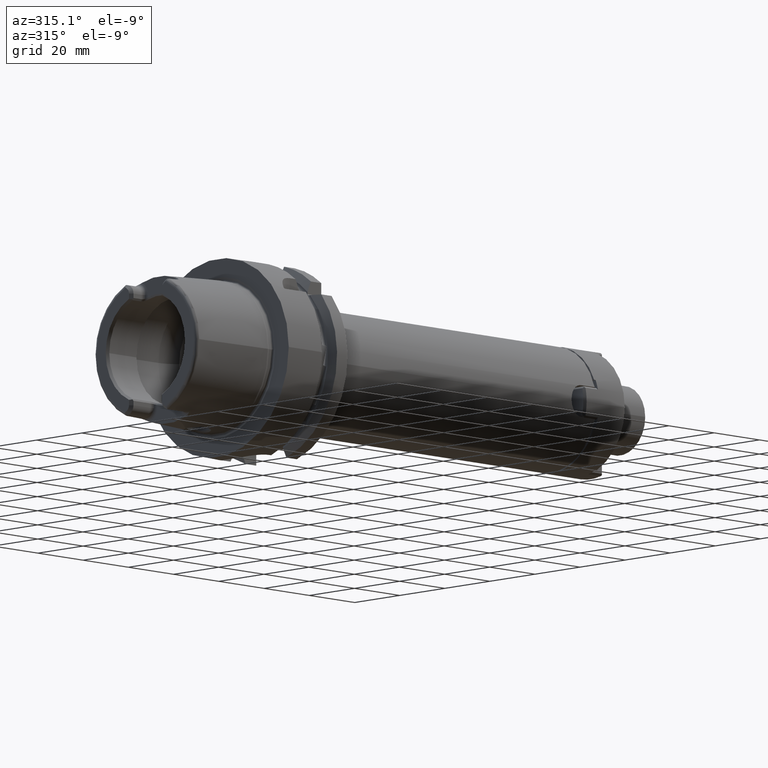
[diagram: clean part render]
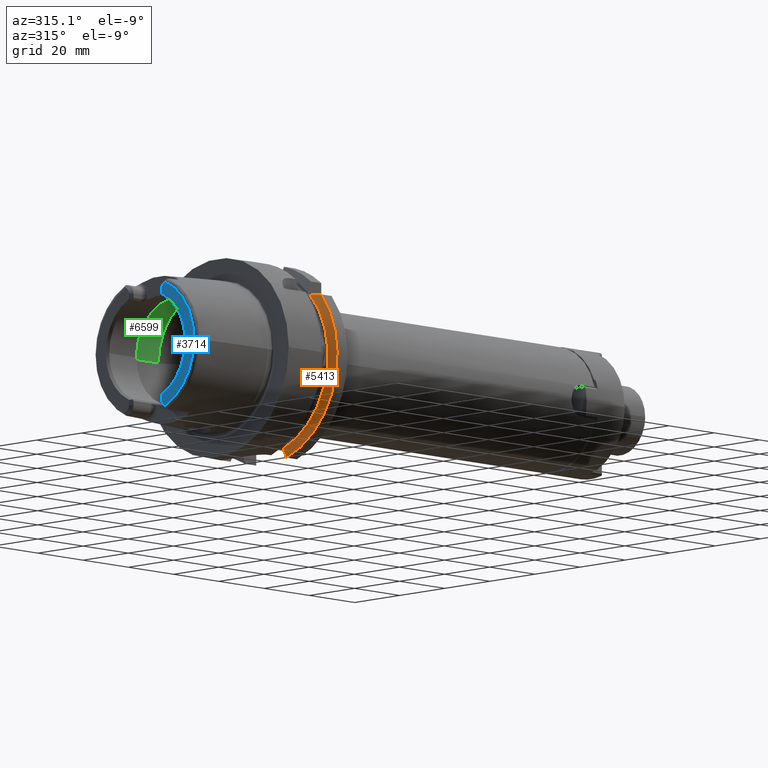
[diagram: same view with three faces highlighted in distinct colors, each labeled with its STEP entity id]
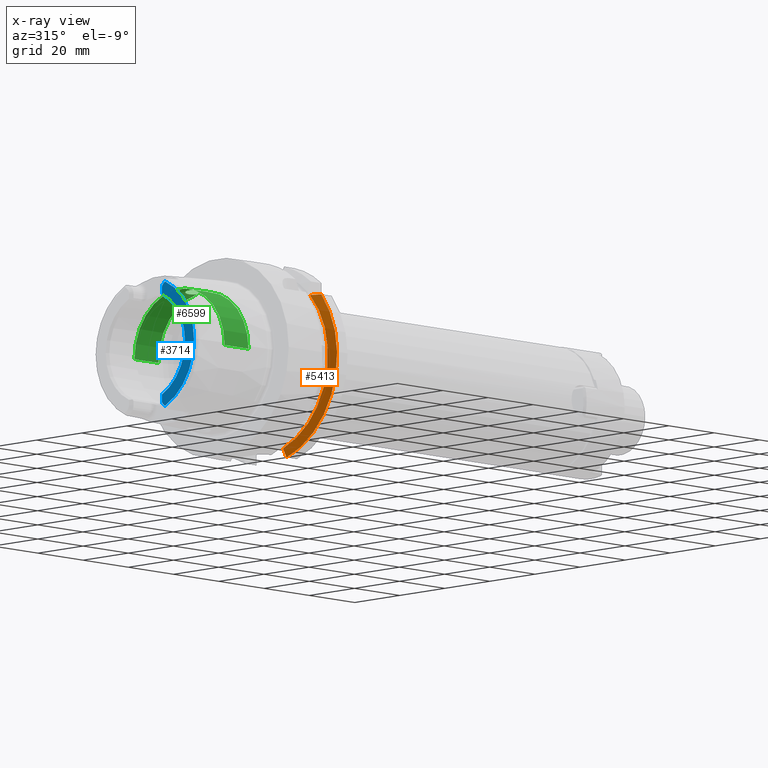
[diagram: x-ray of the same camera — body ghosted, the three highlighted faces saturated]
A machine part, auxiliary view with three faces highlighted in distinct colors.
The next image is the same camera in x-ray (body ghosted, the three faces saturated) — at least one of them is partly hidden behind the body in this view.
Their STEP definitions:

[orange] entity #5413 — the highlighted conical surface has half-angle 60 deg.
#1797=CARTESIAN_POINT('',(1.9875E1,-2.100115501712E1,1.985E1));
#1798=CARTESIAN_POINT('',(2.002615778083E1,-2.136140971936E1,1.985E1));
#1799=CARTESIAN_POINT('',(2.033884699379E1,-2.209786160622E1,1.985E1));
#1800=CARTESIAN_POINT('',(2.083744118214E1,-2.324577082409E1,1.985E1));
#1801=CARTESIAN_POINT('',(2.119367380645E1,-2.404863363206E1,1.985E1));
#1802=CARTESIAN_POINT('',(2.137749907476E1,-2.445868966237E1,1.985E1));
#1804=CARTESIAN_POINT('',(2.137749907476E1,0.E0,0.E0));
#1805=DIRECTION('',(1.E0,0.E0,0.E0));
#1806=DIRECTION('',(0.E0,-7.764663384879E-1,6.301587301587E-1));
#1807=AXIS2_PLACEMENT_3D('',#1804,#1805,#1806);
#1809=CARTESIAN_POINT('',(1.9875E1,-9.0175E0,-2.745461174016E1));
#1810=CARTESIAN_POINT('',(2.003399901875E1,-9.0175E0,-2.774448053791E1));
#1811=CARTESIAN_POINT('',(2.035729051151E1,-9.0175E0,-2.833297398512E1));
#1812=CARTESIAN_POINT('',(2.085789481016E1,-9.0175E0,-2.924158789478E1));
#1813=CARTESIAN_POINT('',(2.120250873981E1,-9.0175E0,-2.986536377611E1));
#1814=CARTESIAN_POINT('',(2.137749907476E1,-9.0175E0,-3.018169467989E1));
#1816=CARTESIAN_POINT('',(1.9875E1,0.E0,0.E0));
#1817=DIRECTION('',(-1.E0,0.E0,0.E0));
#1818=DIRECTION('',(0.E0,-3.120501867909E-1,-9.500656192726E-1));
#1819=AXIS2_PLACEMENT_3D('',#1816,#1817,#1818);
#3353=CARTESIAN_POINT('',(1.9875E1,-9.0175E0,-2.745461174016E1));
#3355=VERTEX_POINT('',#3353);
#3358=VERTEX_POINT('',#1814);
#3365=CARTESIAN_POINT('',(2.137749907476E1,-2.445868966237E1,1.985E1));
#3367=VERTEX_POINT('',#3365);
#3381=CARTESIAN_POINT('',(1.9875E1,-2.100115501712E1,1.985E1));
#3383=VERTEX_POINT('',#3381);
#5401=CARTESIAN_POINT('',(2.062624953738E1,0.E0,0.E0));
#5402=DIRECTION('',(1.E0,0.E0,0.E0));
#5403=DIRECTION('',(0.E0,-1.E0,0.E0));
#5404=AXIS2_PLACEMENT_3D('',#5401,#5402,#5403);
#5405=CONICAL_SURFACE('',#5404,3.019879763210E1,6.E1);
#5406=ORIENTED_EDGE('',*,*,#5282,.T.);
#5407=ORIENTED_EDGE('',*,*,#5195,.T.);
#5409=ORIENTED_EDGE('',*,*,#5408,.F.);
#5410=ORIENTED_EDGE('',*,*,#5368,.T.);
#5411=EDGE_LOOP('',(#5406,#5407,#5409,#5410));
#5412=FACE_OUTER_BOUND('',#5411,.F.);
#5413=ADVANCED_FACE('',(#5412),#5405,.T.);
#1803=B_SPLINE_CURVE_WITH_KNOTS('',3,(#1797,#1798,#1799,#1800,#1801,#1802),
.UNSPECIFIED.,.F.,.F.,(4,1,1,4),(0.E0,3.333333333333E-1,6.666666666667E-1,1.E0),
.UNSPECIFIED.);
#1808=CIRCLE('',#1807,3.15E1);
#1815=B_SPLINE_CURVE_WITH_KNOTS('',3,(#1809,#1810,#1811,#1812,#1813,#1814),
.UNSPECIFIED.,.F.,.F.,(4,1,1,4),(0.E0,3.333333333333E-1,6.666666666667E-1,1.E0),
.UNSPECIFIED.);
#1820=CIRCLE('',#1819,2.889759526419E1);
#5195=EDGE_CURVE('',#3367,#3358,#1808,.T.);
#5282=EDGE_CURVE('',#3383,#3367,#1803,.T.);
#5368=EDGE_CURVE('',#3355,#3383,#1820,.T.);
#5408=EDGE_CURVE('',#3355,#3358,#1815,.T.);

[blue] entity #3714 — the highlighted planar face has unit normal (1, 0, 0).
#231=CARTESIAN_POINT('',(-3.2E1,0.E0,0.E0));
#232=DIRECTION('',(-1.E0,0.E0,0.E0));
#233=DIRECTION('',(0.E0,-4.056746540583E-1,-9.140175463604E-1));
#234=AXIS2_PLACEMENT_3D('',#231,#232,#233);
#315=DIRECTION('',(0.E0,0.E0,-1.E0));
#316=VECTOR('',#315,1.666552168805E0);
#317=CARTESIAN_POINT('',(-3.2E1,-7.27E0,-1.600344783120E1));
#318=LINE('',#317,#316);
#319=DIRECTION('',(0.E0,0.E0,1.E0));
#320=VECTOR('',#319,1.666552168805E0);
#321=CARTESIAN_POINT('',(-3.2E1,-7.27E0,1.600344783120E1));
#322=LINE('',#321,#320);
#323=CARTESIAN_POINT('',(-3.2E1,-9.27E0,1.767E1));
#324=DIRECTION('',(1.E0,0.E0,0.E0));
#325=DIRECTION('',(0.E0,1.E0,1.065814103640E-14));
#326=AXIS2_PLACEMENT_3D('',#323,#324,#325);
#328=DIRECTION('',(0.E0,8.373245684230E-1,-5.467061067112E-1));
#329=VECTOR('',#328,6.882400885957E-1);
#330=CARTESIAN_POINT('',(-3.2E1,-8.752868121732E0,1.972091419616E1));
#331=LINE('',#330,#329);
#332=DIRECTION('',(0.E0,8.373245684230E-1,5.467061067112E-1));
#333=VECTOR('',#332,6.882400885957E-1);
#334=CARTESIAN_POINT('',(-3.2E1,-8.752868121732E0,-1.972091419616E1));
#335=LINE('',#334,#333);
#336=CARTESIAN_POINT('',(-3.2E1,-9.27E0,-1.767E1));
#337=DIRECTION('',(-1.E0,0.E0,0.E0));
#338=DIRECTION('',(0.E0,1.E0,0.E0));
#339=AXIS2_PLACEMENT_3D('',#336,#337,#338);
#410=CARTESIAN_POINT('',(-3.2E1,0.E0,0.E0));
#411=DIRECTION('',(1.E0,0.E0,0.E0));
#412=DIRECTION('',(0.E0,-4.136004510727E-1,9.104584926686E-1));
#413=AXIS2_PLACEMENT_3D('',#410,#411,#412);
#3057=CARTESIAN_POINT('',(-3.2E1,-7.27E0,1.600344783120E1));
#3058=CARTESIAN_POINT('',(-3.2E1,-7.27E0,1.767E1));
#3059=VERTEX_POINT('',#3057);
#3060=VERTEX_POINT('',#3058);
#3061=CARTESIAN_POINT('',(-3.2E1,-8.176587786578E0,1.934464913685E1));
#3062=VERTEX_POINT('',#3061);
#3063=CARTESIAN_POINT('',(-3.2E1,-8.752868121732E0,1.972091419616E1));
#3064=VERTEX_POINT('',#3063);
#3154=CARTESIAN_POINT('',(-3.2E1,-7.27E0,-1.600344783120E1));
#3155=CARTESIAN_POINT('',(-3.2E1,-7.27E0,-1.767E1));
#3156=VERTEX_POINT('',#3154);
#3157=VERTEX_POINT('',#3155);
#3158=CARTESIAN_POINT('',(-3.2E1,-8.176587786578E0,-1.934464913685E1));
#3159=VERTEX_POINT('',#3158);
#3160=CARTESIAN_POINT('',(-3.2E1,-8.752868121732E0,-1.972091419616E1));
#3161=VERTEX_POINT('',#3160);
#3692=CARTESIAN_POINT('',(-3.2E1,0.E0,0.E0));
#3693=DIRECTION('',(1.E0,0.E0,0.E0));
#3694=DIRECTION('',(0.E0,-1.E0,0.E0));
#3695=AXIS2_PLACEMENT_3D('',#3692,#3693,#3694);
#3696=PLANE('',#3695);
#3698=ORIENTED_EDGE('',*,*,#3697,.F.);
#3700=ORIENTED_EDGE('',*,*,#3699,.F.);
#3702=ORIENTED_EDGE('',*,*,#3701,.T.);
#3704=ORIENTED_EDGE('',*,*,#3703,.T.);
#3706=ORIENTED_EDGE('',*,*,#3705,.F.);
#3707=ORIENTED_EDGE('',*,*,#3639,.F.);
#3709=ORIENTED_EDGE('',*,*,#3708,.T.);
#3711=ORIENTED_EDGE('',*,*,#3710,.F.);
#3712=EDGE_LOOP('',(#3698,#3700,#3702,#3704,#3706,#3707,#3709,#3711));
#3713=FACE_OUTER_BOUND('',#3712,.F.);
#3714=ADVANCED_FACE('',(#3713),#3696,.F.);
#235=CIRCLE('',#234,2.157607835286E1);
#327=CIRCLE('',#326,2.E0);
#340=CIRCLE('',#339,2.E0);
#414=CIRCLE('',#413,1.757735026919E1);
#3639=EDGE_CURVE('',#3161,#3064,#235,.T.);
#3697=EDGE_CURVE('',#3156,#3157,#318,.T.);
#3699=EDGE_CURVE('',#3059,#3156,#414,.T.);
#3701=EDGE_CURVE('',#3059,#3060,#322,.T.);
#3703=EDGE_CURVE('',#3060,#3062,#327,.T.);
#3705=EDGE_CURVE('',#3064,#3062,#331,.T.);
#3708=EDGE_CURVE('',#3161,#3159,#335,.T.);
#3710=EDGE_CURVE('',#3157,#3159,#340,.T.);

[green] entity #6599 — the highlighted cylindrical surface (partial cylindrical patch) has radius 20 mm, axis along (1, 0, 0).
#2576=CARTESIAN_POINT('',(-6.344997998398E0,2.648294615690E0,1.982388800484E1));
#2578=CARTESIAN_POINT('',(-6.344997998398E0,-2.648294615690E0,
1.982388800484E1));
#2593=CARTESIAN_POINT('',(-6.344997998398E0,2.648294615690E0,1.982388800484E1));
#2594=CARTESIAN_POINT('',(-6.460596585787E0,2.764185981810E0,1.980840595204E1));
#2595=CARTESIAN_POINT('',(-6.705032526468E0,2.979236620594E0,1.977762997767E1));
#2596=CARTESIAN_POINT('',(-7.115707088008E0,3.254820950558E0,1.973390915713E1));
#2597=CARTESIAN_POINT('',(-7.558788067840E0,3.473550756710E0,1.969635481023E1));
#2598=CARTESIAN_POINT('',(-8.021221245910E0,3.630990626018E0,1.966777323779E1));
#2599=CARTESIAN_POINT('',(-8.506803393416E0,3.728808889512E0,1.964936004927E1));
#2600=CARTESIAN_POINT('',(-9.030555145845E0,3.763361449459E0,1.964272649975E1));
#2601=CARTESIAN_POINT('',(-9.606429583869E0,3.716513314942E0,1.965172145674E1));
#2602=CARTESIAN_POINT('',(-1.018737071400E1,3.573599882894E0,1.967844261791E1));
#2603=CARTESIAN_POINT('',(-1.073043578591E1,3.344031986540E0,1.971908086237E1));
#2604=CARTESIAN_POINT('',(-1.122924164708E1,3.034476069484E0,1.976949853857E1));
#2605=CARTESIAN_POINT('',(-1.167539523054E1,2.649612593318E0,1.982521182701E1));
#2606=CARTESIAN_POINT('',(-1.205589435788E1,2.199789113726E0,1.988058991308E1));
#2607=CARTESIAN_POINT('',(-1.236037157112E1,1.698335126266E0,1.993006117584E1));
#2608=CARTESIAN_POINT('',(-1.258308722480E1,1.156984185320E0,1.996912477874E1));
#2609=CARTESIAN_POINT('',(-1.271933931783E1,5.855799559107E-1,
1.999421727083E1));
#2610=CARTESIAN_POINT('',(-1.275E1,1.970790591689E-1,2.E1));
#2611=CARTESIAN_POINT('',(-1.275E1,0.E0,2.E1));
#2613=CARTESIAN_POINT('',(-6.344997998398E0,0.E0,0.E0));
#2614=DIRECTION('',(1.E0,0.E0,0.E0));
#2615=DIRECTION('',(0.E0,1.E0,0.E0));
#2616=AXIS2_PLACEMENT_3D('',#2613,#2614,#2615);
#2618=CARTESIAN_POINT('',(-6.344997998398E0,0.E0,0.E0));
#2619=DIRECTION('',(1.E0,0.E0,0.E0));
#2620=DIRECTION('',(0.E0,-1.324147307845E-1,9.911944002421E-1));
#2621=AXIS2_PLACEMENT_3D('',#2618,#2619,#2620);
#2623=CARTESIAN_POINT('',(-1.275E1,0.E0,2.E1));
#2624=CARTESIAN_POINT('',(-1.275E1,-1.955242925513E-1,2.E1));
#2625=CARTESIAN_POINT('',(-1.271982051521E1,-5.810761079055E-1,
1.999430841785E1));
#2626=CARTESIAN_POINT('',(-1.258557303883E1,-1.148512219472E0,
1.996957850985E1));
#2627=CARTESIAN_POINT('',(-1.236610647030E1,-1.686465533352E0,
1.993104432949E1));
#2628=CARTESIAN_POINT('',(-1.206568486343E1,-2.185767805005E0,
1.988212273505E1));
#2629=CARTESIAN_POINT('',(-1.169008850873E1,-2.634407568635E0,
1.982723415069E1));
#2630=CARTESIAN_POINT('',(-1.124927195009E1,-3.019358385751E0,
1.977181562270E1));
#2631=CARTESIAN_POINT('',(-1.075709032709E1,-3.329824405020E0,
1.972149412598E1));
#2632=CARTESIAN_POINT('',(-1.021949126442E1,-3.562609701439E0,
1.968045031109E1));
#2633=CARTESIAN_POINT('',(-9.641467361370E0,-3.710631949485E0,
1.965284251435E1));
#2634=CARTESIAN_POINT('',(-9.064366496245E0,-3.763073985501E0,
1.964278184632E1));
#2635=CARTESIAN_POINT('',(-8.536701772833E0,-3.732854425270E0,
1.964858745769E1));
#2636=CARTESIAN_POINT('',(-8.044881233754E0,-3.637565201588E0,
1.966655458906E1));
#2637=CARTESIAN_POINT('',(-7.575563176507E0,-3.480761658208E0,
1.969508217317E1));
#2638=CARTESIAN_POINT('',(-7.126022383363E0,-3.261082066667E0,
1.973288259674E1));
#2639=CARTESIAN_POINT('',(-6.709667549471E0,-2.983130387452E0,
1.977705858332E1));
#2640=CARTESIAN_POINT('',(-6.462043566692E0,-2.765636627510E0,
1.980821215871E1));
#2641=CARTESIAN_POINT('',(-6.344997998398E0,-2.648294615690E0,
1.982388800484E1));
#2688=DIRECTION('',(-1.E0,0.E0,0.E0));
#2689=VECTOR('',#2688,1.057256643630E1);
#2690=CARTESIAN_POINT('',(-6.344997998398E0,-2.E1,0.E0));
#2691=LINE('',#2690,#2689);
#2692=DIRECTION('',(-1.E0,0.E0,0.E0));
#2693=VECTOR('',#2692,1.057256643630E1);
#2694=CARTESIAN_POINT('',(-6.344997998398E0,2.E1,0.E0));
#2695=LINE('',#2694,#2693);
#2927=CARTESIAN_POINT('',(-1.691756443470E1,0.E0,0.E0));
#2928=DIRECTION('',(1.E0,0.E0,0.E0));
#2929=DIRECTION('',(0.E0,1.E0,0.E0));
#2930=AXIS2_PLACEMENT_3D('',#2927,#2928,#2929);
#2992=CARTESIAN_POINT('',(-6.344997998398E0,2.E1,0.E0));
#2993=VERTEX_POINT('',#2992);
#2994=CARTESIAN_POINT('',(-1.691756443470E1,2.E1,0.E0));
#2995=VERTEX_POINT('',#2994);
#3004=CARTESIAN_POINT('',(-6.344997998398E0,-2.E1,0.E0));
#3005=VERTEX_POINT('',#3004);
#3006=CARTESIAN_POINT('',(-1.691756443470E1,-2.E1,0.E0));
#3007=VERTEX_POINT('',#3006);
#3174=VERTEX_POINT('',#2576);
#3175=VERTEX_POINT('',#2578);
#3176=VERTEX_POINT('',#2611);
#6582=CARTESIAN_POINT('',(-3.41E1,0.E0,0.E0));
#6583=DIRECTION('',(1.E0,0.E0,0.E0));
#6584=DIRECTION('',(0.E0,-1.E0,0.E0));
#6585=AXIS2_PLACEMENT_3D('',#6582,#6583,#6584);
#6586=CYLINDRICAL_SURFACE('',#6585,2.E1);
#6587=ORIENTED_EDGE('',*,*,#6541,.F.);
#6588=ORIENTED_EDGE('',*,*,#6577,.F.);
#6590=ORIENTED_EDGE('',*,*,#6589,.T.);
#6592=ORIENTED_EDGE('',*,*,#6591,.T.);
#6594=ORIENTED_EDGE('',*,*,#6593,.F.);
#6595=ORIENTED_EDGE('',*,*,#6569,.F.);
#6596=ORIENTED_EDGE('',*,*,#6303,.F.);
#6597=EDGE_LOOP('',(#6587,#6588,#6590,#6592,#6594,#6595,#6596));
#6598=FACE_OUTER_BOUND('',#6597,.F.);
#6599=ADVANCED_FACE('',(#6598),#6586,.F.);
#2612=B_SPLINE_CURVE_WITH_KNOTS('',3,(#2593,#2594,#2595,#2596,#2597,#2598,#2599,
#2600,#2601,#2602,#2603,#2604,#2605,#2606,#2607,#2608,#2609,#2610,#2611),
.UNSPECIFIED.,.F.,.F.,(4,1,1,1,1,1,1,1,1,1,1,1,1,1,1,1,4),(0.E0,6.25E-2,1.25E-1,
1.875E-1,2.5E-1,3.125E-1,3.75E-1,4.375E-1,5.E-1,5.625E-1,6.25E-1,6.875E-1,
7.5E-1,8.125E-1,8.75E-1,9.375E-1,1.E0),.UNSPECIFIED.);
#2617=CIRCLE('',#2616,2.E1);
#2622=CIRCLE('',#2621,2.E1);
#2642=B_SPLINE_CURVE_WITH_KNOTS('',3,(#2623,#2624,#2625,#2626,#2627,#2628,#2629,
#2630,#2631,#2632,#2633,#2634,#2635,#2636,#2637,#2638,#2639,#2640,#2641),
.UNSPECIFIED.,.F.,.F.,(4,1,1,1,1,1,1,1,1,1,1,1,1,1,1,1,4),(0.E0,6.25E-2,1.25E-1,
1.875E-1,2.5E-1,3.125E-1,3.75E-1,4.375E-1,5.E-1,5.625E-1,6.25E-1,6.875E-1,
7.5E-1,8.125E-1,8.75E-1,9.375E-1,1.E0),.UNSPECIFIED.);
#2931=CIRCLE('',#2930,2.E1);
#6303=EDGE_CURVE('',#3176,#3175,#2642,.T.);
#6541=EDGE_CURVE('',#3174,#3176,#2612,.T.);
#6569=EDGE_CURVE('',#3175,#3005,#2622,.T.);
#6577=EDGE_CURVE('',#2993,#3174,#2617,.T.);
#6589=EDGE_CURVE('',#2993,#2995,#2695,.T.);
#6591=EDGE_CURVE('',#2995,#3007,#2931,.T.);
#6593=EDGE_CURVE('',#3005,#3007,#2691,.T.);